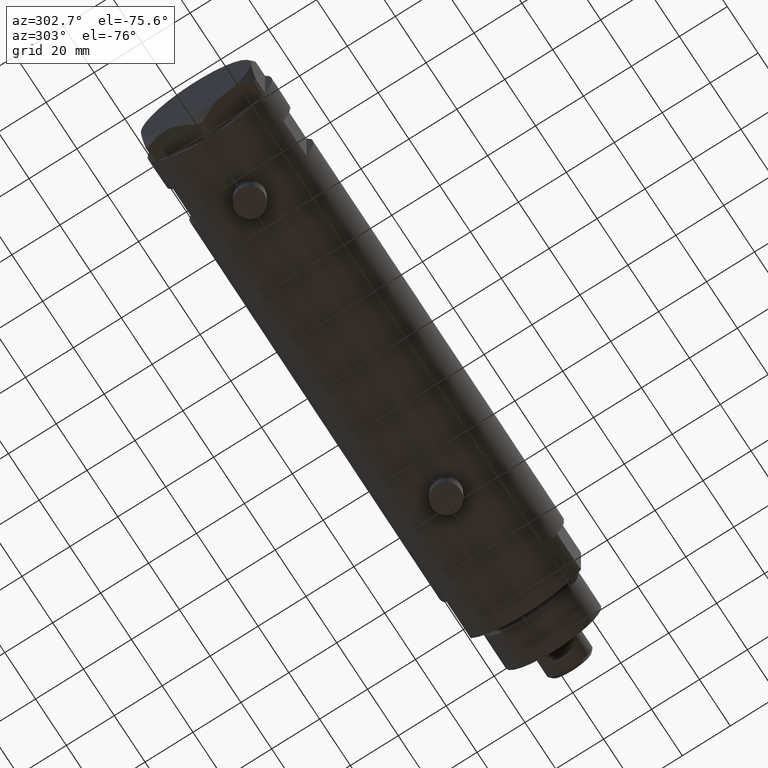
[diagram: clean part render]
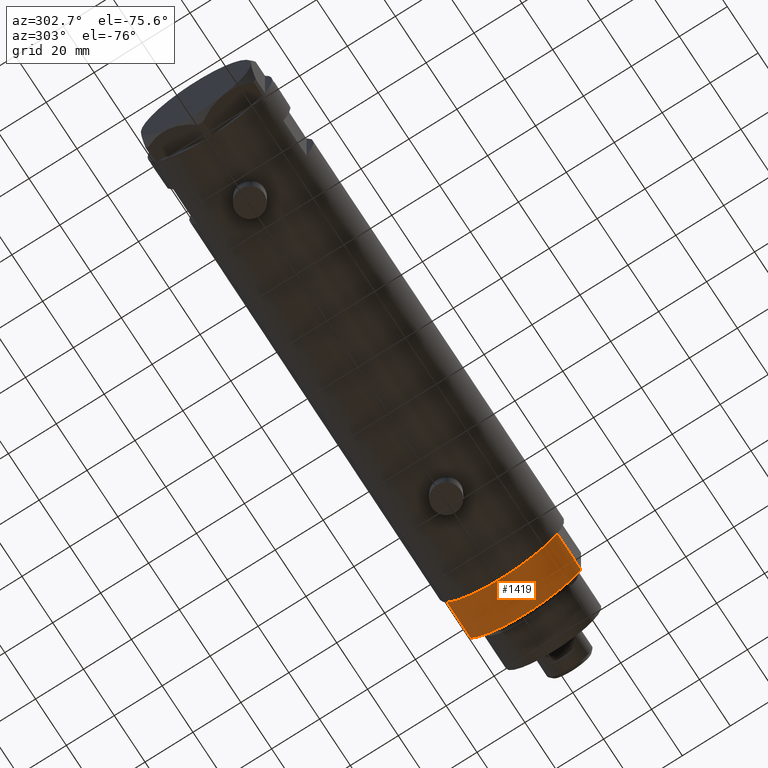
[diagram: same view with one face highlighted and labeled with its STEP entity id]
A machine part, auxiliary view. The second image highlights one B-rep face of the part: STEP entity #1419.
In plain terms, the highlighted cylindrical surface (partial cylindrical patch) has radius 26 mm, axis along (-1, -0, 0).
Its self-contained STEP definition (entity closure, byte-faithful):
#101 = CARTESIAN_POINT ( 'NONE',  ( 12.12435565298215323, -22.99999999999999645, 0.000000000000000000 ) ) ;
#429 = FACE_OUTER_BOUND ( 'NONE', #437, .T. ) ;
#437 = EDGE_LOOP ( 'NONE', ( #885, #3038, #1899, #3241 ) ) ;
#804 = DIRECTION ( 'NONE',  ( -0.000000000000000000, -0.000000000000000000, -1.000000000000000000 ) ) ;
#816 = DIRECTION ( 'NONE',  ( 1.000000000000000000, 0.000000000000000000, 0.000000000000000000 ) ) ;
#830 = CARTESIAN_POINT ( 'NONE',  ( 12.12435565298214080, 23.00000000000000355, 0.000000000000000000 ) ) ;
#841 = VERTEX_POINT ( 'NONE', #3595 ) ;
#885 = ORIENTED_EDGE ( 'NONE', *, *, #3175, .F. ) ;
#1018 = AXIS2_PLACEMENT_3D ( 'NONE', #1669, #4191, #816 ) ;
#1204 = CARTESIAN_POINT ( 'NONE',  ( 12.12435565298215323, 23.00000000000000355, 0.000000000000000000 ) ) ;
#1249 = CIRCLE ( 'NONE', #1018, 26.00000000000000355 ) ;
#1278 = DIRECTION ( 'NONE',  ( -0.000000000000000000, -0.000000000000000000, 1.000000000000000000 ) ) ;
#1300 = CARTESIAN_POINT ( 'NONE',  ( 0.000000000000000000, 0.000000000000000000, 0.000000000000000000 ) ) ;
#1419 = ADVANCED_FACE ( 'NONE', ( #429 ), #1852, .T. ) ;
#1669 = CARTESIAN_POINT ( 'NONE',  ( 0.000000000000000000, 0.000000000000000000, 15.50000000000000000 ) ) ;
#1852 = CYLINDRICAL_SURFACE ( 'NONE', #2741, 26.00000000000000355 ) ;
#1899 = ORIENTED_EDGE ( 'NONE', *, *, #3171, .T. ) ;
#1928 = EDGE_CURVE ( 'NONE', #841, #2954, #2093, .T. ) ;
#2093 = LINE ( 'NONE', #101, #2332 ) ;
#2218 = CARTESIAN_POINT ( 'NONE',  ( 0.000000000000000000, 0.000000000000000000, 15.50000000000000000 ) ) ;
#2332 = VECTOR ( 'NONE', #1278, 1000.000000000000000 ) ;
#2480 = VERTEX_POINT ( 'NONE', #3100 ) ;
#2499 = EDGE_CURVE ( 'NONE', #2799, #2480, #3605, .T. ) ;
#2741 = AXIS2_PLACEMENT_3D ( 'NONE', #2218, #804, #3744 ) ;
#2799 = VERTEX_POINT ( 'NONE', #830 ) ;
#2815 = AXIS2_PLACEMENT_3D ( 'NONE', #1300, #3159, #4622 ) ;
#2954 = VERTEX_POINT ( 'NONE', #3724 ) ;
#3038 = ORIENTED_EDGE ( 'NONE', *, *, #1928, .F. ) ;
#3100 = CARTESIAN_POINT ( 'NONE',  ( 12.12435565298214790, 23.00000000000000355, 15.50000000000000000 ) ) ;
#3159 = DIRECTION ( 'NONE',  ( 0.000000000000000000, 0.000000000000000000, 1.000000000000000000 ) ) ;
#3171 = EDGE_CURVE ( 'NONE', #841, #2799, #4008, .T. ) ;
#3175 = EDGE_CURVE ( 'NONE', #2954, #2480, #1249, .T. ) ;
#3241 = ORIENTED_EDGE ( 'NONE', *, *, #2499, .T. ) ;
#3595 = CARTESIAN_POINT ( 'NONE',  ( 12.12435565298215323, -22.99999999999999645, 0.000000000000000000 ) ) ;
#3605 = LINE ( 'NONE', #1204, #4228 ) ;
#3724 = CARTESIAN_POINT ( 'NONE',  ( 12.12435565298215323, -22.99999999999999645, 15.50000000000000000 ) ) ;
#3744 = DIRECTION ( 'NONE',  ( -1.000000000000000000, 0.000000000000000000, 0.000000000000000000 ) ) ;
#4008 = CIRCLE ( 'NONE', #2815, 26.00000000000000355 ) ;
#4191 = DIRECTION ( 'NONE',  ( 0.000000000000000000, 0.000000000000000000, 1.000000000000000000 ) ) ;
#4209 = DIRECTION ( 'NONE',  ( -0.000000000000000000, -0.000000000000000000, 1.000000000000000000 ) ) ;
#4228 = VECTOR ( 'NONE', #4209, 1000.000000000000000 ) ;
#4622 = DIRECTION ( 'NONE',  ( 1.000000000000000000, 0.000000000000000000, 0.000000000000000000 ) ) ;